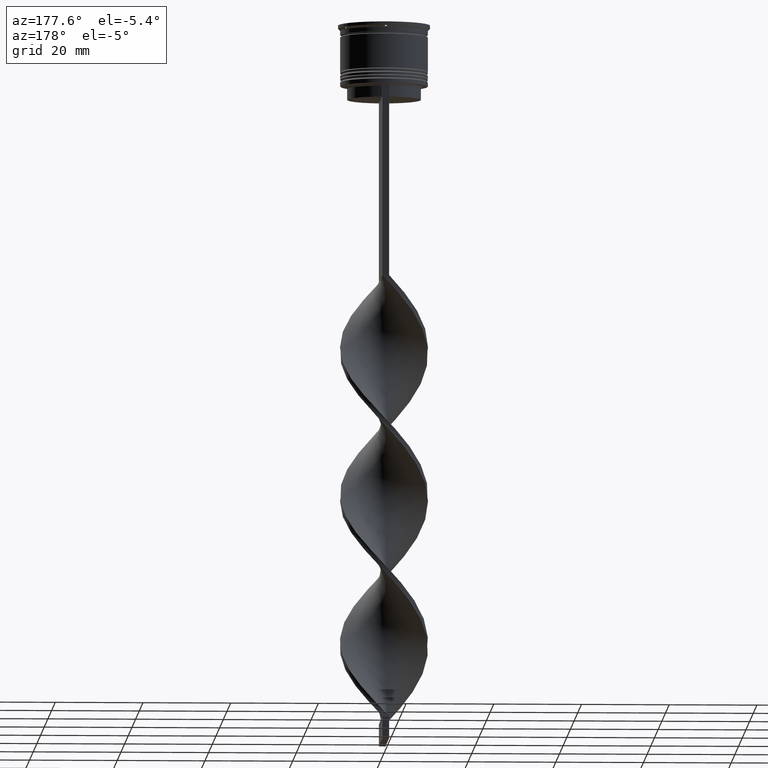
[diagram: clean part render]
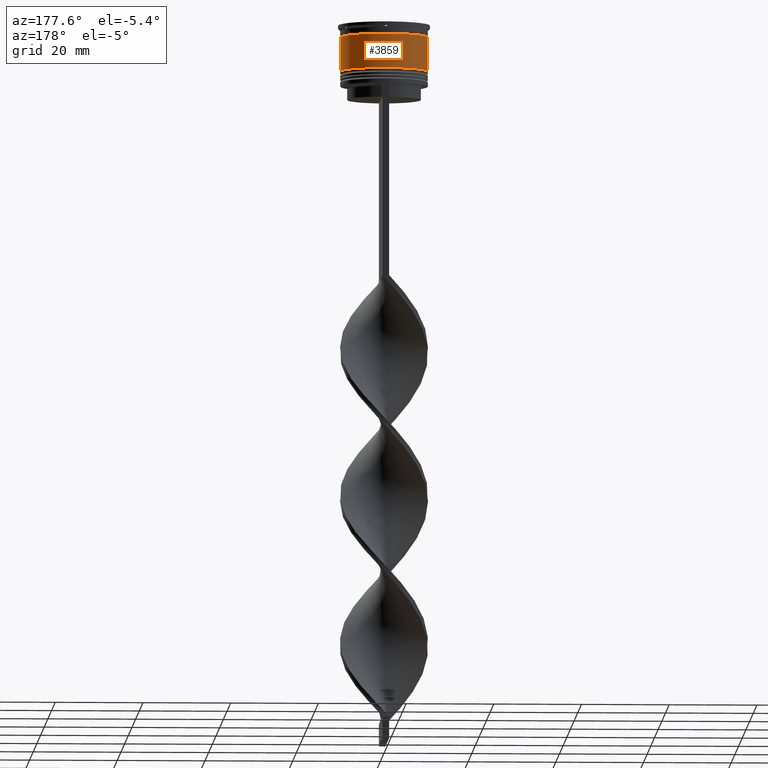
[diagram: same view with one face highlighted and labeled with its STEP entity id]
A machine part, auxiliary view. The second image highlights one B-rep face of the part: STEP entity #3859.
In plain terms, the highlighted cylindrical surface (partial cylindrical patch) has radius 10 mm, axis along (-0, -0, 1).
Its self-contained STEP definition (entity closure, byte-faithful):
#23 = DIRECTION ( 'NONE',  ( 1.000000000000000000, 0.000000000000000000, 0.000000000000000000 ) ) ;
#217 = CARTESIAN_POINT ( 'NONE',  ( 0.000000000000000000, 0.000000000000000000, -10.50000000000000000 ) ) ;
#395 = ORIENTED_EDGE ( 'NONE', *, *, #2725, .F. ) ;
#444 = FACE_OUTER_BOUND ( 'NONE', #2836, .T. ) ;
#515 = DIRECTION ( 'NONE',  ( -0.000000000000000000, -0.000000000000000000, 1.000000000000000000 ) ) ;
#626 = CARTESIAN_POINT ( 'NONE',  ( -10.00000000000000178, 1.224646799147353454E-15, -10.50000000000000000 ) ) ;
#962 = DIRECTION ( 'NONE',  ( 1.000000000000000000, 0.000000000000000000, 0.000000000000000000 ) ) ;
#1108 = LINE ( 'NONE', #3846, #1963 ) ;
#1216 = AXIS2_PLACEMENT_3D ( 'NONE', #3919, #2352, #23 ) ;
#1288 = DIRECTION ( 'NONE',  ( -0.000000000000000000, -0.000000000000000000, 1.000000000000000000 ) ) ;
#1396 = AXIS2_PLACEMENT_3D ( 'NONE', #217, #1435, #962 ) ;
#1431 = DIRECTION ( 'NONE',  ( -0.000000000000000000, -0.000000000000000000, 1.000000000000000000 ) ) ;
#1435 = DIRECTION ( 'NONE',  ( -0.000000000000000000, -0.000000000000000000, 1.000000000000000000 ) ) ;
#1452 = DIRECTION ( 'NONE',  ( 1.000000000000000000, 0.000000000000000000, 0.000000000000000000 ) ) ;
#1571 = CARTESIAN_POINT ( 'NONE',  ( 10.00000000000000000, 0.000000000000000000, 0.000000000000000000 ) ) ;
#1779 = CIRCLE ( 'NONE', #2275, 9.999999999999998224 ) ;
#1911 = ORIENTED_EDGE ( 'NONE', *, *, #2665, .T. ) ;
#1963 = VECTOR ( 'NONE', #515, 1000.000000000000000 ) ;
#2242 = LINE ( 'NONE', #1571, #3109 ) ;
#2275 = AXIS2_PLACEMENT_3D ( 'NONE', #3257, #1431, #1452 ) ;
#2281 = CIRCLE ( 'NONE', #1396, 10.00000000000000178 ) ;
#2352 = DIRECTION ( 'NONE',  ( -0.000000000000000000, -0.000000000000000000, 1.000000000000000000 ) ) ;
#2497 = VERTEX_POINT ( 'NONE', #3508 ) ;
#2656 = ORIENTED_EDGE ( 'NONE', *, *, #2795, .F. ) ;
#2665 = EDGE_CURVE ( 'NONE', #3867, #3287, #1108, .T. ) ;
#2723 = VERTEX_POINT ( 'NONE', #3193 ) ;
#2725 = EDGE_CURVE ( 'NONE', #2723, #3287, #1779, .T. ) ;
#2795 = EDGE_CURVE ( 'NONE', #2497, #2723, #2242, .T. ) ;
#2836 = EDGE_LOOP ( 'NONE', ( #3611, #1911, #395, #2656 ) ) ;
#2945 = CARTESIAN_POINT ( 'NONE',  ( -9.999999999999998224, 1.224646799147353256E-15, -2.700000000000001954 ) ) ;
#3109 = VECTOR ( 'NONE', #1288, 1000.000000000000000 ) ;
#3193 = CARTESIAN_POINT ( 'NONE',  ( 9.999999999999998224, 0.000000000000000000, -2.700000000000001954 ) ) ;
#3257 = CARTESIAN_POINT ( 'NONE',  ( 0.000000000000000000, 0.000000000000000000, -2.700000000000001954 ) ) ;
#3287 = VERTEX_POINT ( 'NONE', #2945 ) ;
#3306 = EDGE_CURVE ( 'NONE', #2497, #3867, #2281, .T. ) ;
#3508 = CARTESIAN_POINT ( 'NONE',  ( 10.00000000000000178, 0.000000000000000000, -10.50000000000000000 ) ) ;
#3611 = ORIENTED_EDGE ( 'NONE', *, *, #3306, .T. ) ;
#3772 = CYLINDRICAL_SURFACE ( 'NONE', #1216, 10.00000000000000000 ) ;
#3846 = CARTESIAN_POINT ( 'NONE',  ( -10.00000000000000000, 1.224646799147353256E-15, 0.000000000000000000 ) ) ;
#3859 = ADVANCED_FACE ( 'NONE', ( #444 ), #3772, .T. ) ;
#3867 = VERTEX_POINT ( 'NONE', #626 ) ;
#3919 = CARTESIAN_POINT ( 'NONE',  ( 0.000000000000000000, 0.000000000000000000, 0.000000000000000000 ) ) ;